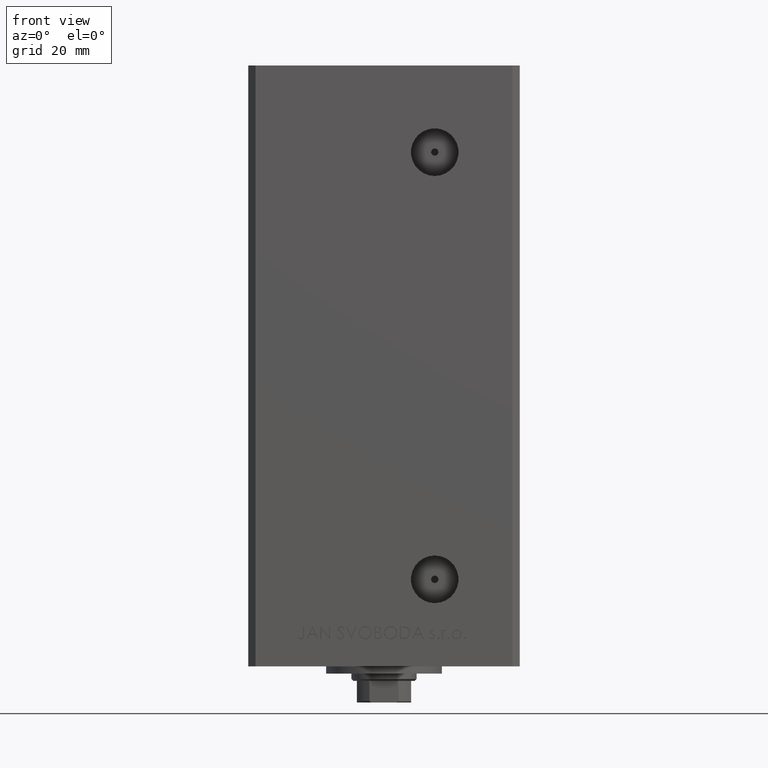
[diagram: clean part render]
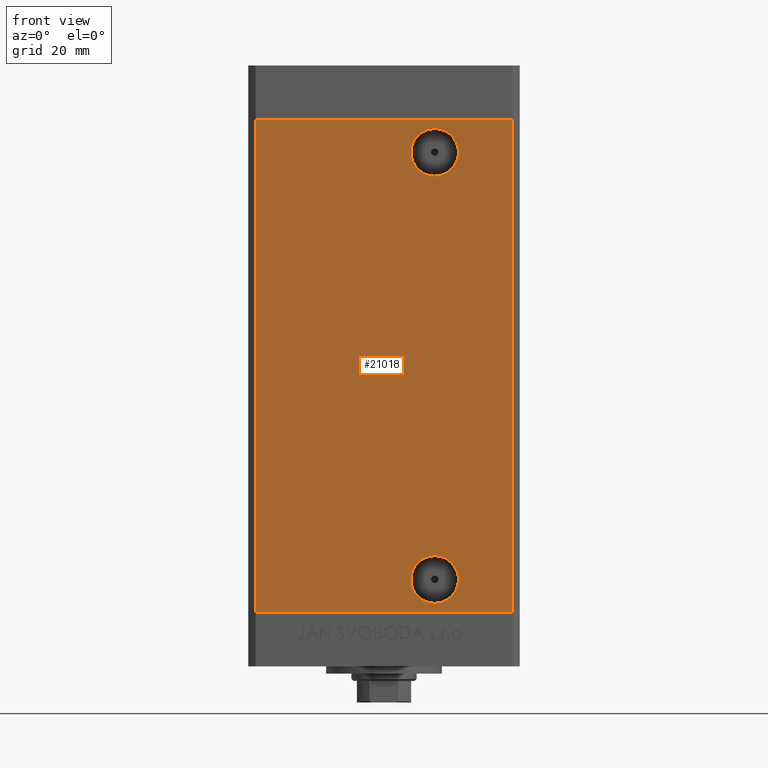
[diagram: same view with one face highlighted and labeled with its STEP entity id]
A machine part, front view. The second image highlights one B-rep face of the part: STEP entity #21018.
In plain terms, the highlighted planar face has unit normal (0, 1, 0).
Its self-contained STEP definition (entity closure, byte-faithful):
#182 = CARTESIAN_POINT ( 'NONE',  ( 35.49999999999999289, -32.50000000000000000, 136.0000000000000000 ) ) ;
#735 = VERTEX_POINT ( 'NONE', #37781 ) ;
#872 = DIRECTION ( 'NONE',  ( -0.000000000000000000, -0.000000000000000000, -1.000000000000000000 ) ) ;
#1683 = LINE ( 'NONE', #43656, #16123 ) ;
#3203 = VECTOR ( 'NONE', #37487, 1000.000000000000000 ) ;
#3547 = LINE ( 'NONE', #41736, #3203 ) ;
#5299 = VERTEX_POINT ( 'NONE', #47899 ) ;
#5766 = CARTESIAN_POINT ( 'NONE',  ( 13.99999999999999112, -32.50000000000000000, 127.0000000000000000 ) ) ;
#6204 = CARTESIAN_POINT ( 'NONE',  ( 13.99999999999999112, -32.50000000000000000, 127.0000000000000000 ) ) ;
#7218 = FACE_BOUND ( 'NONE', #16977, .T. ) ;
#7332 = CARTESIAN_POINT ( 'NONE',  ( 35.49999999999999289, -32.50000000000000000, 136.0000000000000000 ) ) ;
#7685 = DIRECTION ( 'NONE',  ( 0.000000000000000000, 0.000000000000000000, -1.000000000000000000 ) ) ;
#9541 = AXIS2_PLACEMENT_3D ( 'NONE', #49550, #25978, #12618 ) ;
#11492 = FACE_OUTER_BOUND ( 'NONE', #45545, .T. ) ;
#11675 = CIRCLE ( 'NONE', #38966, 6.579999999999998295 ) ;
#11805 = EDGE_CURVE ( 'NONE', #42451, #47813, #22680, .T. ) ;
#12618 = DIRECTION ( 'NONE',  ( 0.000000000000000000, 0.000000000000000000, -1.000000000000000000 ) ) ;
#13028 = ORIENTED_EDGE ( 'NONE', *, *, #42991, .F. ) ;
#13152 = AXIS2_PLACEMENT_3D ( 'NONE', #6204, #14754, #7685 ) ;
#13910 = EDGE_CURVE ( 'NONE', #735, #25931, #13964, .T. ) ;
#13964 = CIRCLE ( 'NONE', #13152, 6.580000000000002736 ) ;
#14754 = DIRECTION ( 'NONE',  ( -0.000000000000000000, 1.000000000000000000, -0.000000000000000000 ) ) ;
#15137 = DIRECTION ( 'NONE',  ( -0.000000000000000000, -0.000000000000000000, -1.000000000000000000 ) ) ;
#15436 = DIRECTION ( 'NONE',  ( 0.000000000000000000, 0.000000000000000000, -1.000000000000000000 ) ) ;
#16123 = VECTOR ( 'NONE', #39395, 1000.000000000000000 ) ;
#16521 = CARTESIAN_POINT ( 'NONE',  ( -35.49999999999999289, -32.50000000000000000, 0.000000000000000000 ) ) ;
#16977 = EDGE_LOOP ( 'NONE', ( #13028, #23342 ) ) ;
#17316 = ORIENTED_EDGE ( 'NONE', *, *, #34121, .T. ) ;
#17326 = VECTOR ( 'NONE', #872, 1000.000000000000000 ) ;
#17988 = VERTEX_POINT ( 'NONE', #39674 ) ;
#18134 = EDGE_CURVE ( 'NONE', #5299, #24269, #31046, .T. ) ;
#20316 = VECTOR ( 'NONE', #15137, 1000.000000000000000 ) ;
#21018 = ADVANCED_FACE ( 'NONE', ( #7218, #11492, #22080 ), #45167, .F. ) ;
#22080 = FACE_BOUND ( 'NONE', #26409, .T. ) ;
#22680 = LINE ( 'NONE', #7332, #20316 ) ;
#22843 = ORIENTED_EDGE ( 'NONE', *, *, #13910, .T. ) ;
#23057 = AXIS2_PLACEMENT_3D ( 'NONE', #5766, #35453, #39944 ) ;
#23342 = ORIENTED_EDGE ( 'NONE', *, *, #30588, .F. ) ;
#24269 = VERTEX_POINT ( 'NONE', #16521 ) ;
#25368 = ORIENTED_EDGE ( 'NONE', *, *, #18134, .T. ) ;
#25465 = AXIS2_PLACEMENT_3D ( 'NONE', #41154, #29864, #30593 ) ;
#25931 = VERTEX_POINT ( 'NONE', #45744 ) ;
#25978 = DIRECTION ( 'NONE',  ( 0.000000000000000000, -1.000000000000000000, 0.000000000000000000 ) ) ;
#26409 = EDGE_LOOP ( 'NONE', ( #22843, #17316 ) ) ;
#29864 = DIRECTION ( 'NONE',  ( 0.000000000000000000, 1.000000000000000000, 0.000000000000000000 ) ) ;
#30588 = EDGE_CURVE ( 'NONE', #48904, #17988, #11675, .T. ) ;
#30593 = DIRECTION ( 'NONE',  ( 0.000000000000000000, -0.000000000000000000, 1.000000000000000000 ) ) ;
#31046 = LINE ( 'NONE', #31293, #17326 ) ;
#31293 = CARTESIAN_POINT ( 'NONE',  ( -35.49999999999999289, -32.50000000000000000, 136.0000000000000000 ) ) ;
#34048 = DIRECTION ( 'NONE',  ( 0.000000000000000000, -1.000000000000000000, 0.000000000000000000 ) ) ;
#34121 = EDGE_CURVE ( 'NONE', #25931, #735, #45483, .T. ) ;
#35453 = DIRECTION ( 'NONE',  ( -0.000000000000000000, 1.000000000000000000, -0.000000000000000000 ) ) ;
#37487 = DIRECTION ( 'NONE',  ( 1.000000000000000000, 0.000000000000000000, 0.000000000000000000 ) ) ;
#37781 = CARTESIAN_POINT ( 'NONE',  ( 13.99999999999999112, -32.50000000000000000, 120.4200000000000017 ) ) ;
#38602 = CARTESIAN_POINT ( 'NONE',  ( 35.49999999999999289, -32.50000000000000000, 0.000000000000000000 ) ) ;
#38966 = AXIS2_PLACEMENT_3D ( 'NONE', #41565, #34048, #15436 ) ;
#39395 = DIRECTION ( 'NONE',  ( 1.000000000000000000, 0.000000000000000000, 0.000000000000000000 ) ) ;
#39674 = CARTESIAN_POINT ( 'NONE',  ( 13.99999999999999112, -32.50000000000000000, 2.420000000000009699 ) ) ;
#39944 = DIRECTION ( 'NONE',  ( 0.000000000000000000, 0.000000000000000000, -1.000000000000000000 ) ) ;
#39974 = EDGE_CURVE ( 'NONE', #5299, #42451, #3547, .T. ) ;
#40021 = CIRCLE ( 'NONE', #9541, 6.579999999999998295 ) ;
#40229 = CARTESIAN_POINT ( 'NONE',  ( 13.99999999999999112, -32.50000000000000000, 15.58000000000000718 ) ) ;
#41154 = CARTESIAN_POINT ( 'NONE',  ( -35.49999999999999289, -32.50000000000000000, 136.0000000000000000 ) ) ;
#41565 = CARTESIAN_POINT ( 'NONE',  ( 13.99999999999999112, -32.50000000000000000, 9.000000000000007105 ) ) ;
#41668 = ORIENTED_EDGE ( 'NONE', *, *, #39974, .F. ) ;
#41736 = CARTESIAN_POINT ( 'NONE',  ( -35.49999999999999289, -32.50000000000000000, 136.0000000000000000 ) ) ;
#42451 = VERTEX_POINT ( 'NONE', #182 ) ;
#42991 = EDGE_CURVE ( 'NONE', #17988, #48904, #40021, .T. ) ;
#43656 = CARTESIAN_POINT ( 'NONE',  ( -35.49999999999999289, -32.50000000000000000, 0.000000000000000000 ) ) ;
#45167 = PLANE ( 'NONE',  #25465 ) ;
#45400 = ORIENTED_EDGE ( 'NONE', *, *, #46876, .T. ) ;
#45483 = CIRCLE ( 'NONE', #23057, 6.580000000000002736 ) ;
#45545 = EDGE_LOOP ( 'NONE', ( #45400, #48106, #41668, #25368 ) ) ;
#45744 = CARTESIAN_POINT ( 'NONE',  ( 13.99999999999999112, -32.50000000000000000, 133.5800000000000125 ) ) ;
#46876 = EDGE_CURVE ( 'NONE', #24269, #47813, #1683, .T. ) ;
#47813 = VERTEX_POINT ( 'NONE', #38602 ) ;
#47899 = CARTESIAN_POINT ( 'NONE',  ( -35.49999999999999289, -32.50000000000000000, 136.0000000000000000 ) ) ;
#48106 = ORIENTED_EDGE ( 'NONE', *, *, #11805, .F. ) ;
#48904 = VERTEX_POINT ( 'NONE', #40229 ) ;
#49550 = CARTESIAN_POINT ( 'NONE',  ( 13.99999999999999112, -32.50000000000000000, 9.000000000000007105 ) ) ;